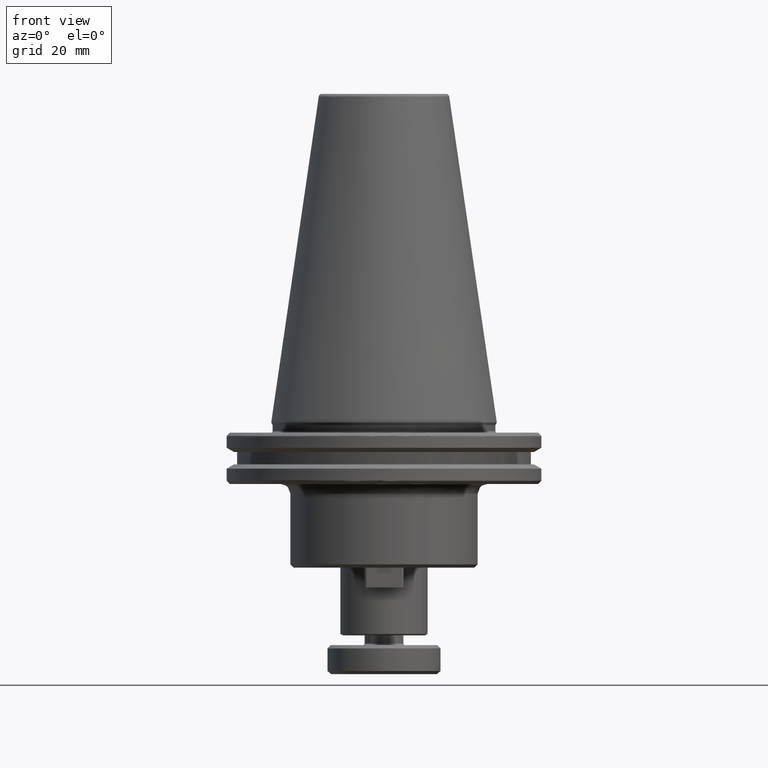
[diagram: clean part render]
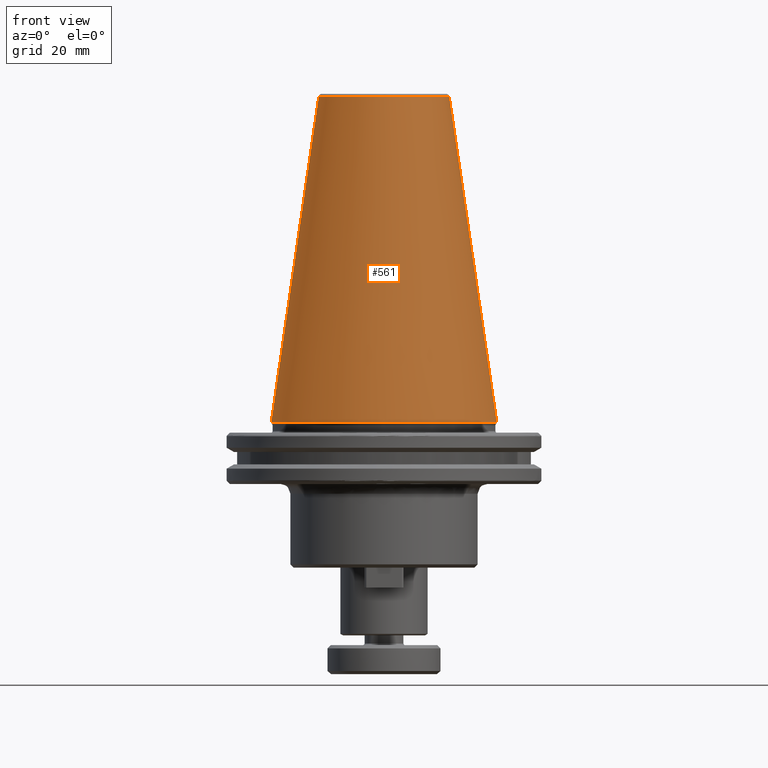
[diagram: same view with one face highlighted and labeled with its STEP entity id]
A machine part, front view. The second image highlights one B-rep face of the part: STEP entity #561.
In plain terms, the highlighted conical surface has half-angle 8.297 deg.
Its self-contained STEP definition (entity closure, byte-faithful):
#282 = EDGE_CURVE ( 'NONE', #2294, #1027, #1221, .T. ) ;
#283 = VERTEX_POINT ( 'NONE', #2565 ) ;
#561 = ADVANCED_FACE ( 'NONE', ( #3967 ), #3874, .T. ) ;
#602 = AXIS2_PLACEMENT_3D ( 'NONE', #678, #675, #666 ) ;
#631 = ORIENTED_EDGE ( 'NONE', *, *, #2110, .T. ) ;
#666 = DIRECTION ( 'NONE',  ( -1.000000000000000000, 0.0000000000000000000, 0.0000000000000000000 ) ) ;
#675 = DIRECTION ( 'NONE',  ( 0.0000000000000000000, 0.0000000000000000000, -1.000000000000000000 ) ) ;
#678 = CARTESIAN_POINT ( 'NONE',  ( 0.0000000000000000000, 0.0000000000000000000, 100.8943082272673000 ) ) ;
#716 = ORIENTED_EDGE ( 'NONE', *, *, #1819, .T. ) ;
#1024 = AXIS2_PLACEMENT_3D ( 'NONE', #3076, #3095, #3202 ) ;
#1027 = VERTEX_POINT ( 'NONE', #3693 ) ;
#1212 = CARTESIAN_POINT ( 'NONE',  ( -34.92500000000000400, 4.277078946022131700E-015, 0.0000000000000000000 ) ) ;
#1221 = LINE ( 'NONE', #2093, #2925 ) ;
#1390 = DIRECTION ( 'NONE',  ( -0.1443082272673069400, 0.0000000000000000000, -0.9895327864921743500 ) ) ;
#1596 = ORIENTED_EDGE ( 'NONE', *, *, #2445, .T. ) ;
#1636 = CARTESIAN_POINT ( 'NONE',  ( 0.0000000000000000000, 0.0000000000000000000, 0.0000000000000000000 ) ) ;
#1741 = CARTESIAN_POINT ( 'NONE',  ( -34.92499999999999700, 0.0000000000000000000, -1.387778780781445700E-014 ) ) ;
#1819 = EDGE_CURVE ( 'NONE', #2294, #283, #3337, .T. ) ;
#1971 = VECTOR ( 'NONE', #1390, 1000.000000000000000 ) ;
#1995 = DIRECTION ( 'NONE',  ( -1.000000000000000000, 0.0000000000000000000, 0.0000000000000000000 ) ) ;
#2093 = CARTESIAN_POINT ( 'NONE',  ( 34.92499999999999700, 4.277078946022130900E-015, -1.387778780781445700E-014 ) ) ;
#2110 = EDGE_CURVE ( 'NONE', #283, #3268, #3562, .T. ) ;
#2294 = VERTEX_POINT ( 'NONE', #2849 ) ;
#2392 = CIRCLE ( 'NONE', #3538, 34.92499999999999700 ) ;
#2445 = EDGE_CURVE ( 'NONE', #3268, #1027, #2392, .T. ) ;
#2565 = CARTESIAN_POINT ( 'NONE',  ( -20.21110778703758000, 0.0000000000000000000, 100.8943082272673000 ) ) ;
#2834 = EDGE_LOOP ( 'NONE', ( #4165, #716, #631, #1596 ) ) ;
#2849 = CARTESIAN_POINT ( 'NONE',  ( 20.21110778703758000, 3.376112895941951000E-015, 100.8943082272673000 ) ) ;
#2925 = VECTOR ( 'NONE', #3369, 1000.000000000000000 ) ;
#3076 = CARTESIAN_POINT ( 'NONE',  ( 0.0000000000000000000, 0.0000000000000000000, -1.387778780781445700E-014 ) ) ;
#3095 = DIRECTION ( 'NONE',  ( 0.0000000000000000000, 0.0000000000000000000, -1.000000000000000000 ) ) ;
#3202 = DIRECTION ( 'NONE',  ( -1.000000000000000000, 0.0000000000000000000, 0.0000000000000000000 ) ) ;
#3268 = VERTEX_POINT ( 'NONE', #1212 ) ;
#3337 = CIRCLE ( 'NONE', #602, 20.21110778703758000 ) ;
#3369 = DIRECTION ( 'NONE',  ( 0.1443082272673069400, 1.767266086135362400E-017, -0.9895327864921743500 ) ) ;
#3538 = AXIS2_PLACEMENT_3D ( 'NONE', #1636, #3948, #1995 ) ;
#3562 = LINE ( 'NONE', #1741, #1971 ) ;
#3693 = CARTESIAN_POINT ( 'NONE',  ( 34.92500000000000400, 0.0000000000000000000, 0.0000000000000000000 ) ) ;
#3874 = CONICAL_SURFACE ( 'NONE', #1024, 34.92499999999999700, 0.1448138465474189400 ) ;
#3948 = DIRECTION ( 'NONE',  ( -0.0000000000000000000, -0.0000000000000000000, 1.000000000000000000 ) ) ;
#3967 = FACE_OUTER_BOUND ( 'NONE', #2834, .T. ) ;
#4165 = ORIENTED_EDGE ( 'NONE', *, *, #282, .F. ) ;